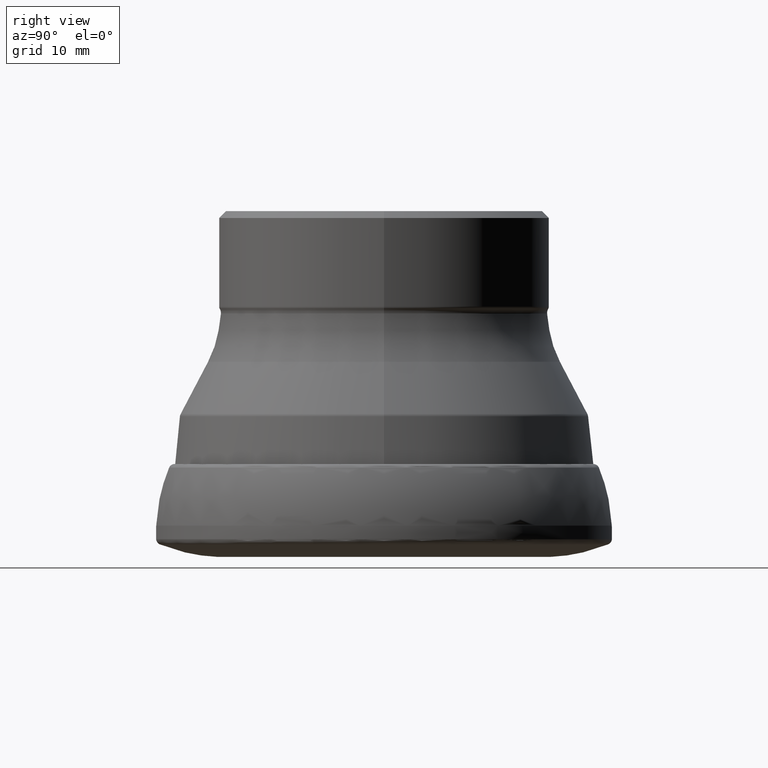
[diagram: clean part render]
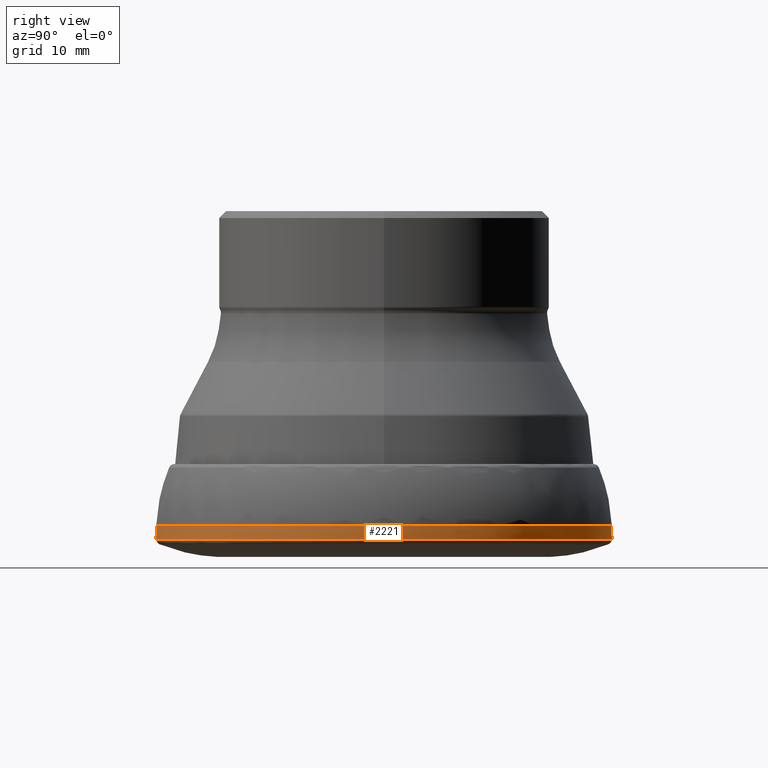
[diagram: same view with one face highlighted and labeled with its STEP entity id]
A machine part, right view. The second image highlights one B-rep face of the part: STEP entity #2221.
In plain terms, the highlighted face is a freeform B-spline surface patch.
Its self-contained STEP definition (entity closure, byte-faithful):
#4 = CARTESIAN_POINT ( 'NONE',  ( 0.0000000000000000000, 32.94141556894328500, -3.545217693805113900 ) ) ;
#20 = CARTESIAN_POINT ( 'NONE',  ( 2.300060144876135000E-013, -32.93817038754690400, -4.037954335868055200 ) ) ;
#73 = CARTESIAN_POINT ( 'NONE',  ( 0.0000000000000000000, 5.658837121491545700E-016, -4.530690978079938700 ) ) ;
#86 = CARTESIAN_POINT ( 'NONE',  ( 0.0000000000000000000, -32.93503732902213700, -4.530690978079942300 ) ) ;
#131 = B_SPLINE_CURVE_WITH_KNOTS ( 'NONE', 2,
 ( #86, #20, #1569 ),
 .UNSPECIFIED., .F., .F.,
 ( 3, 3 ),
 ( 0.5001479418869194700, 0.5001532362941838400 ),
 .UNSPECIFIED. ) ;
#292 =( BOUNDED_SURFACE ( )  B_SPLINE_SURFACE ( 2, 3, ( 
 ( #1180, #295, #2130, #1136 ),
 ( #952, #2915, #2137, #749 ),
 ( #1234, #2320, #2854, #1746 ) ),
 .UNSPECIFIED., .F., .F., .F. ) 
 B_SPLINE_SURFACE_WITH_KNOTS ( ( 3, 3 ),
 ( 4, 4 ),
 ( 0.4998415567088624900, 0.4998521517917908200 ),
 ( 0.0000000000000000000, 1.000000000000000000 ),
 .UNSPECIFIED. ) 
 GEOMETRIC_REPRESENTATION_ITEM ( )  RATIONAL_B_SPLINE_SURFACE ( (
 ( 1.000000000000000000, 0.3333333333333335400, 0.3333333333333335400, 1.000000000000000000),
 ( 1.000000000000000000, 0.3333333333333335400, 0.3333333333333335400, 1.000000000000000000),
 ( 1.000000000000000000, 0.3333333333333335400, 0.3333333333333335400, 1.000000000000000000) ) ) 
 REPRESENTATION_ITEM ( '' )  SURFACE ( )  );
#295 = CARTESIAN_POINT ( 'NONE',  ( 65.89603612869196100, 32.94801806434600200, -2.559742976593781800 ) ) ;
#328 = CARTESIAN_POINT ( 'NONE',  ( 0.0000000000000000000, -32.94466062228435300, -3.052480334756734000 ) ) ;
#333 = EDGE_CURVE ( 'NONE', #1772, #1582, #1745, .T. ) ;
#432 = VERTEX_POINT ( 'NONE', #1452 ) ;
#503 = ORIENTED_EDGE ( 'NONE', *, *, #889, .T. ) ;
#600 = VERTEX_POINT ( 'NONE', #867 ) ;
#749 = CARTESIAN_POINT ( 'NONE',  ( 1.866302345323574300E-014, -32.94130318509841300, -3.545216977334803700 ) ) ;
#802 = DIRECTION ( 'NONE',  ( 0.0000000000000000000, 1.000000000000000000, 1.316776612887106200E-016 ) ) ;
#867 = CARTESIAN_POINT ( 'NONE',  ( 0.0000000000000000000, -32.93503732902213700, -4.530690978079942300 ) ) ;
#873 = ORIENTED_EDGE ( 'NONE', *, *, #333, .T. ) ;
#889 = EDGE_CURVE ( 'NONE', #1582, #2705, #2107, .T. ) ;
#901 = CARTESIAN_POINT ( 'NONE',  ( 0.0000000000000000000, -32.94801806434610800, -2.559742976590229100 ) ) ;
#952 = CARTESIAN_POINT ( 'NONE',  ( 2.032918339340734900E-025, 32.94130318509841300, -3.545216977334795700 ) ) ;
#999 = DIRECTION ( 'NONE',  ( 0.0000000000000000000, 1.000000000000000000, 1.184632050803532400E-016 ) ) ;
#1047 = CARTESIAN_POINT ( 'NONE',  ( 0.0000000000000000000, 32.94801806438736200, -2.559742976856826900 ) ) ;
#1071 = EDGE_CURVE ( 'NONE', #2419, #432, #1364, .T. ) ;
#1116 = EDGE_LOOP ( 'NONE', ( #1782, #3027, #1160, #873, #503, #3033 ) ) ;
#1136 = CARTESIAN_POINT ( 'NONE',  ( 1.866682779419266900E-014, -32.94801806434599500, -2.559742976593790200 ) ) ;
#1160 = ORIENTED_EDGE ( 'NONE', *, *, #1689, .F. ) ;
#1180 = CARTESIAN_POINT ( 'NONE',  ( 2.033846026501525500E-025, 32.94801806434599500, -2.559742976593781800 ) ) ;
#1221 = CARTESIAN_POINT ( 'NONE',  ( 0.0000000000000000000, -32.94801806434610800, -2.559742976590229100 ) ) ;
#1234 = CARTESIAN_POINT ( 'NONE',  ( 2.032049250178838100E-025, 32.93503732897987400, -4.530690978075814000 ) ) ;
#1364 = B_SPLINE_CURVE_WITH_KNOTS ( 'NONE', 2,
 ( #2354, #2203, #1997 ),
 .UNSPECIFIED., .F., .F.,
 ( 3, 3 ),
 ( 0.5001479418869194700, 0.5001532362941838400 ),
 .UNSPECIFIED. ) ;
#1452 = CARTESIAN_POINT ( 'NONE',  ( 0.0000000000000000000, 32.94141556894328500, -3.545217693805113900 ) ) ;
#1529 = AXIS2_PLACEMENT_3D ( 'NONE', #2910, #2318, #999 ) ;
#1569 = CARTESIAN_POINT ( 'NONE',  ( 0.0000000000000000000, -32.94141543614512100, -3.545217692931146300 ) ) ;
#1582 = VERTEX_POINT ( 'NONE', #901 ) ;
#1689 = EDGE_CURVE ( 'NONE', #1772, #432, #2802, .T. ) ;
#1734 = CARTESIAN_POINT ( 'NONE',  ( 0.0000000000000000000, -32.94141543614512100, -3.545217692931146300 ) ) ;
#1745 = CIRCLE ( 'NONE', #1529, 32.94801806434610800 ) ;
#1746 = CARTESIAN_POINT ( 'NONE',  ( 1.865947350807916300E-014, -32.93503732897987400, -4.530690978075822000 ) ) ;
#1772 = VERTEX_POINT ( 'NONE', #1047 ) ;
#1782 = ORIENTED_EDGE ( 'NONE', *, *, #2141, .F. ) ;
#1783 = CARTESIAN_POINT ( 'NONE',  ( 0.0000000000000000000, 32.93503732913985300, -4.530690977926354900 ) ) ;
#1997 = CARTESIAN_POINT ( 'NONE',  ( 0.0000000000000000000, 32.94141556894328500, -3.545217693805113900 ) ) ;
#2079 = AXIS2_PLACEMENT_3D ( 'NONE', #73, #2961, #802 ) ;
#2107 = B_SPLINE_CURVE_WITH_KNOTS ( 'NONE', 2,
 ( #1221, #328, #1734 ),
 .UNSPECIFIED., .F., .F.,
 ( 3, 3 ),
 ( 0.4998415567088624300, 0.4998468542541733600 ),
 .UNSPECIFIED. ) ;
#2130 = CARTESIAN_POINT ( 'NONE',  ( 65.89603612869196100, -32.94801806434595900, -2.559742976593789800 ) ) ;
#2137 = CARTESIAN_POINT ( 'NONE',  ( 65.88260637019679700, -32.94130318509837700, -3.545216977334803700 ) ) ;
#2141 = EDGE_CURVE ( 'NONE', #2419, #600, #3025, .T. ) ;
#2203 = CARTESIAN_POINT ( 'NONE',  ( 0.0000000000000000000, 32.93817038754690400, -4.037954335864501600 ) ) ;
#2221 = ADVANCED_FACE ( 'NONE', ( #2408 ), #292, .F. ) ;
#2266 = CARTESIAN_POINT ( 'NONE',  ( 0.0000000000000000000, 32.94801806438736200, -2.559742976856826900 ) ) ;
#2318 = DIRECTION ( 'NONE',  ( -0.0000000000000000000, 1.249000902703301100E-016, -1.000000000000000000 ) ) ;
#2320 = CARTESIAN_POINT ( 'NONE',  ( 65.87007465795970500, 32.93503732897987400, -4.530690978075814000 ) ) ;
#2354 = CARTESIAN_POINT ( 'NONE',  ( 0.0000000000000000000, 32.93503732913985300, -4.530690977926354900 ) ) ;
#2408 = FACE_OUTER_BOUND ( 'NONE', #1116, .T. ) ;
#2411 = CARTESIAN_POINT ( 'NONE',  ( 0.0000000000000000000, -32.94141543614512100, -3.545217692931146300 ) ) ;
#2419 = VERTEX_POINT ( 'NONE', #1783 ) ;
#2705 = VERTEX_POINT ( 'NONE', #2411 ) ;
#2789 = CARTESIAN_POINT ( 'NONE',  ( -2.300513355547844500E-013, 32.94466062228431000, -3.052480334749959800 ) ) ;
#2802 = B_SPLINE_CURVE_WITH_KNOTS ( 'NONE', 2,
 ( #2266, #2789, #4 ),
 .UNSPECIFIED., .F., .F.,
 ( 3, 3 ),
 ( 0.4998415567088624900, 0.4998468542541733000 ),
 .UNSPECIFIED. ) ;
#2854 = CARTESIAN_POINT ( 'NONE',  ( 65.87007465795971900, -32.93503732897983800, -4.530690978075822000 ) ) ;
#2908 = EDGE_CURVE ( 'NONE', #600, #2705, #131, .T. ) ;
#2910 = CARTESIAN_POINT ( 'NONE',  ( 0.0000000000000000000, 3.197121288449625700E-016, -2.559742976590224700 ) ) ;
#2915 = CARTESIAN_POINT ( 'NONE',  ( 65.88260637019678300, 32.94130318509841300, -3.545216977334795700 ) ) ;
#2961 = DIRECTION ( 'NONE',  ( -0.0000000000000000000, 1.249000902703301100E-016, -1.000000000000000000 ) ) ;
#3025 = CIRCLE ( 'NONE', #2079, 32.93503732902213700 ) ;
#3027 = ORIENTED_EDGE ( 'NONE', *, *, #1071, .T. ) ;
#3033 = ORIENTED_EDGE ( 'NONE', *, *, #2908, .F. ) ;